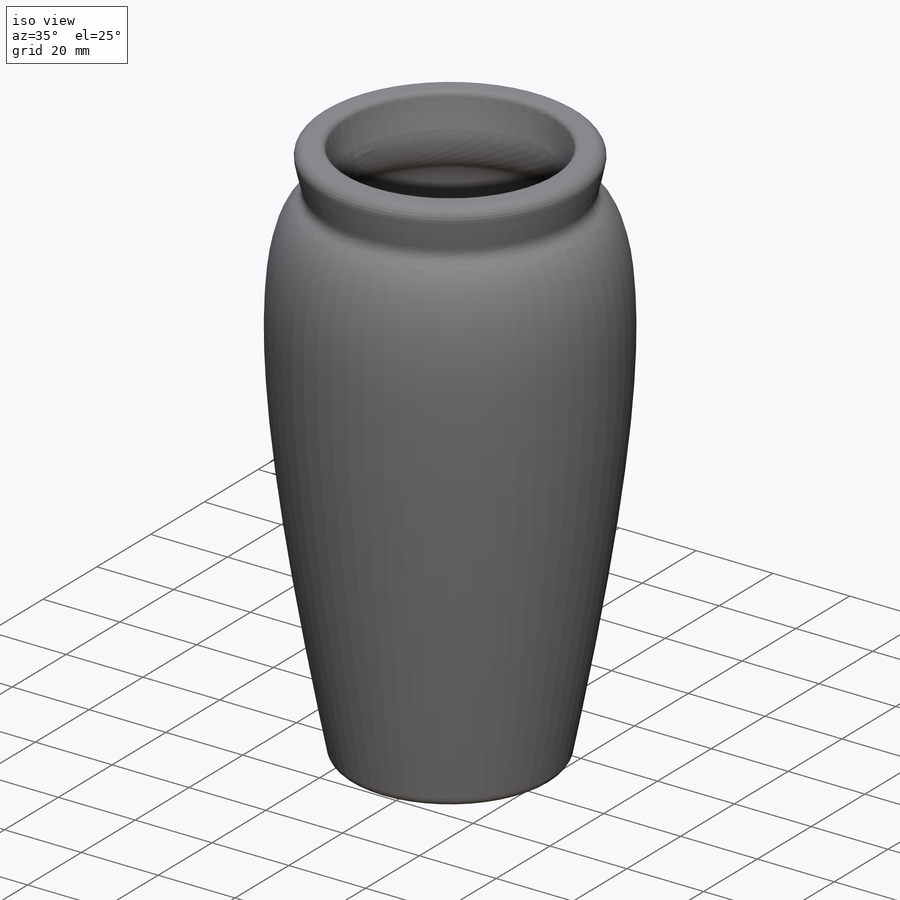
[diagram: iso view]
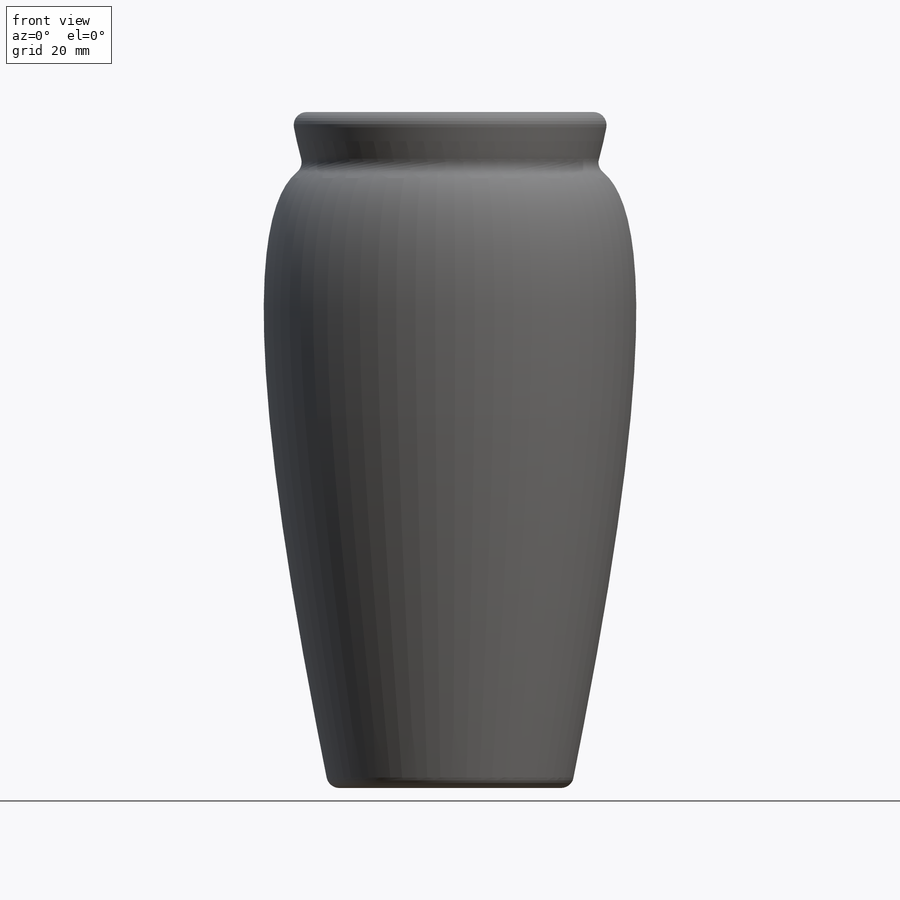
[diagram: front view]
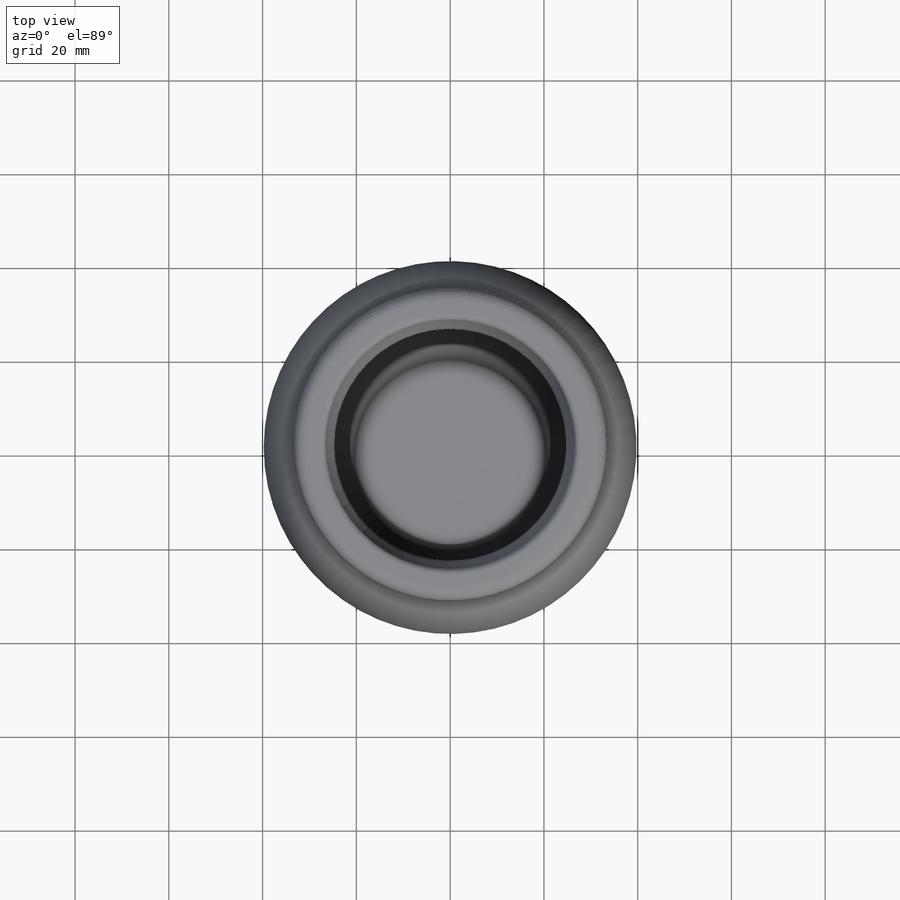
[diagram: top view]
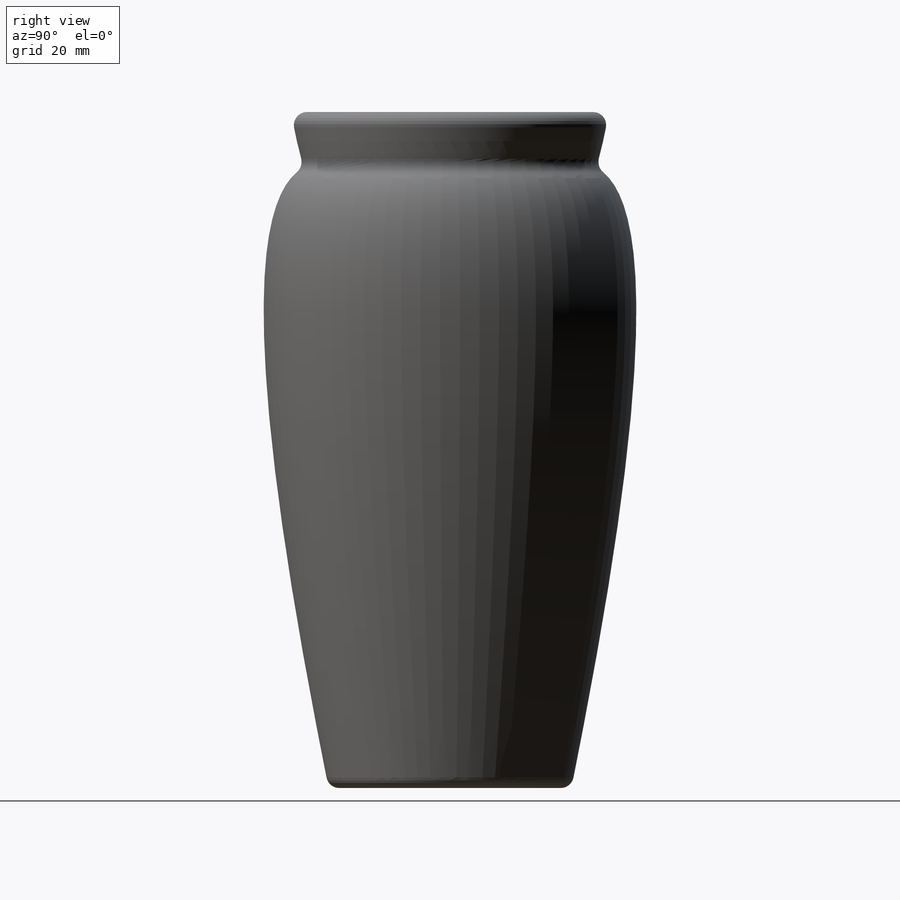
[diagram: right view]
SOLIDWORKS PART (.sldprt)
format: sldprt  version: not decoded by parser v0  size: 390,144 bytes
history: native  units: mm
features: plane x3, shell x2, material x1, sketch x1, revolve x1, fillet x1 (+10 scaffold rows collapsed)
feature tree (19):
  scaffold x10  (default folders/planes/origin — collapsed)
  material  "Material <sin especificar>"
  plane  "Alzado"
  plane  "Planta"
  plane  "Vista lateral"
  sketch  "Croquis1"  dims[D5=~17.383274mm D6=194.6541mm D7=~86.01503mm D8=~6.497632mm D1=206.0mm D2=48.0mm D3=37.0mm D4=17.0mm]
  revolve  "Revolución1"  Angle=360deg
  fillet  "Redondeo1"  Radius=4mm
  shell  "Vaciado1"  Thickness=10mm
  shell  "Redondeo2"  Thickness=2mm
decode coverage: 5 of 5 modeling features carry decoded parameters
note: ~ marks probable driven/reference dimensions
note: suppression state not decoded; provenance and decode notes live in map.json
